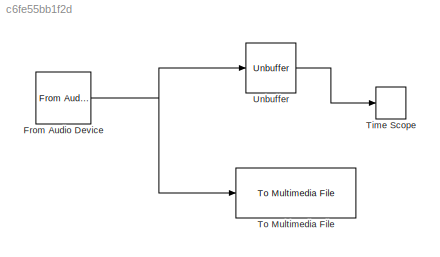
MODEL slx_c6fe55bb1f2d
KIND model
BLOCK [Reference] From Audio Device  REF=dspsrcs4/From Audio
Device
  Ports = [0, 1]
  SourceBlock = dspsrcs4/From Audio\nDevice
  SourceType = From Audio Device
  autoBufferSize = on
  bufferSize = 4096
  defaultInputChannelMapping = on
  deviceDatatype = 24-bit integer
  deviceName = Default
  frameSize = 1024
  inputChannelMapping = 1:2
  numChannels = 1
  outputDatatype = single
  queueDuration = 5
  sampleRate = 32000
BLOCK [TimeScope] Time Scope
  DefaultConfigurationName = spbscopes.TimeScopeBlockCfg
  NumInputPorts = 1
  Ports = [1]
  UserDataPersistent = on
BLOCK [Reference] To Multimedia File  REF=dspvision/To Multimedia File
  Ports = [1]
  SourceBlock = dspvision/To Multimedia File
  SourceType = To Multimedia File
  audioCompressor = None (uncompressed)
  audioDatatype = 24-bit integer
  fileType = WAV
  fourcc = RGB
  imagePorts = Separate color signals
  mj2000CompFactor = 10
  outputFilename = prueba.wav
  streamSelection = Audio only
  videoCompressor = None (uncompressed)
  videoQuality = 75
BLOCK [Unbuffer] Unbuffer
  Ports = [1, 1]
  SampleBasedProcessing = Same as frame based
NET From Audio Device:1 -> To Multimedia File:1, Unbuffer:1
LINE Unbuffer:1 -> Time Scope:1
note: NET lines group one-source signal fan-out (src -> all destinations, sorted); 1:1 wires keep LINE
